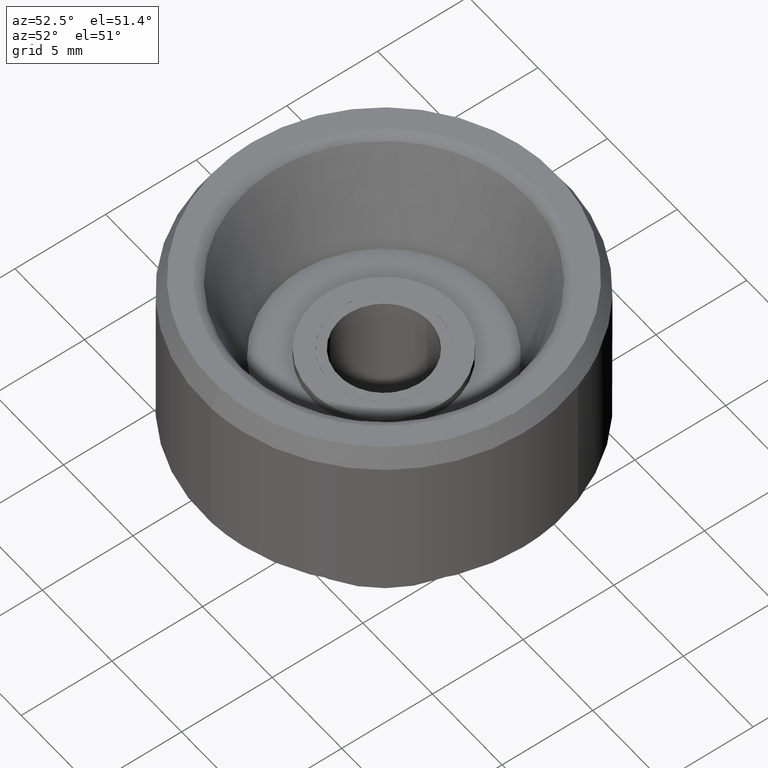
[diagram: clean part render]
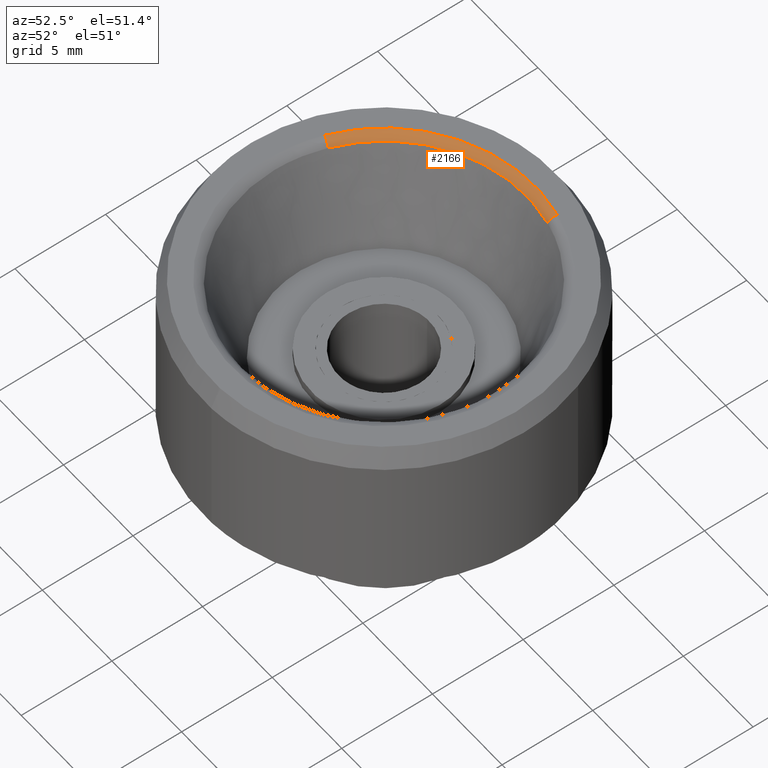
[diagram: same view with one face highlighted and labeled with its STEP entity id]
A machine part, auxiliary view. The second image highlights one B-rep face of the part: STEP entity #2166.
In plain terms, the highlighted face is a freeform B-spline surface patch.
Its self-contained STEP definition (entity closure, byte-faithful):
#536=CARTESIAN_POINT('',(1.747159656451596,7.684193380176412,14.670871531647320));
#537=VERTEX_POINT('',#536);
#551=CARTESIAN_POINT('',(-7.431064275972828,2.622723488216345,14.670871531682600));
#552=VERTEX_POINT('',#551);
#553=CARTESIAN_POINT('',(1.747159656451596,7.684193380176412,14.670871531647320));
#554=CARTESIAN_POINT('',(0.884587535206844,7.880316920561220,14.670871531543446));
#555=CARTESIAN_POINT('',(0.0,7.880316920561219,14.670871531543440));
#556=CARTESIAN_POINT('',(-5.575446658521182,7.880316920561220,14.670871531543449));
#557=CARTESIAN_POINT('',(-7.431064275972829,2.622723488216345,14.670871531682600));
#565=(BOUNDED_CURVE()B_SPLINE_CURVE(2,(#553,#554,#555,#556,#557),.UNSPECIFIED.,.F.,.U.)B_SPLINE_CURVE_WITH_KNOTS((3,2,3),(0.712075985374303,0.750000000000000,0.943451214484640),.UNSPECIFIED.)CURVE()GEOMETRIC_REPRESENTATION_ITEM()RATIONAL_B_SPLINE_CURVE((0.924618444636449,0.955569253143804,1.0,0.773357804424888,0.897469272749543))REPRESENTATION_ITEM(''));
#566=EDGE_CURVE('',#537,#552,#565,.T.);
#2051=CARTESIAN_POINT('',(-7.874172427628556,2.779114297675484,15.0));
#2052=VERTEX_POINT('',#2051);
#2053=CARTESIAN_POINT('',(-7.431064275972828,2.622723488216345,14.670871531682604));
#2054=CARTESIAN_POINT('',(-7.543924287190924,2.662556356200838,14.999999999532820));
#2055=CARTESIAN_POINT('',(-7.874172427628556,2.779114297675484,14.999999999999998));
#2063=(BOUNDED_CURVE()B_SPLINE_CURVE(2,(#2053,#2054,#2055),.UNSPECIFIED.,.F.,.U.)B_SPLINE_CURVE_WITH_KNOTS((3,3),(-1.672020091320803,-0.331586705160698),.UNSPECIFIED.)CURVE()GEOMETRIC_REPRESENTATION_ITEM()RATIONAL_B_SPLINE_CURVE((0.900583652726177,0.737279750086628,0.899707184970135))REPRESENTATION_ITEM(''));
#2064=EDGE_CURVE('',#552,#2052,#2063,.T.);
#2098=CARTESIAN_POINT('',(1.851341326507019,8.142395409055265,15.0));
#2099=VERTEX_POINT('',#2098);
#2113=CARTESIAN_POINT('',(1.747159656451596,7.684193380176412,14.670871531647318));
#2114=CARTESIAN_POINT('',(1.773694813635053,7.800897814384962,14.999999999957845));
#2115=CARTESIAN_POINT('',(1.851341326507019,8.142395409055265,14.999999999999995));
#2123=(BOUNDED_CURVE()B_SPLINE_CURVE(2,(#2113,#2114,#2115),.UNSPECIFIED.,.F.,.U.)B_SPLINE_CURVE_WITH_KNOTS((3,3),(-1.672020091496347,-0.331586703743604),.UNSPECIFIED.)CURVE()GEOMETRIC_REPRESENTATION_ITEM()RATIONAL_B_SPLINE_CURVE((0.861755995604046,0.705492757895419,0.860917316062945))REPRESENTATION_ITEM(''));
#2124=EDGE_CURVE('',#537,#2099,#2123,.T.);
#2129=CARTESIAN_POINT('',(-7.422637742933167,2.619749423490307,14.643941880888097));
#2130=CARTESIAN_POINT('',(-5.089772623068878,9.229546731817123,14.643941880888093));
#2131=CARTESIAN_POINT('',(1.745178446491600,7.675479808754300,14.643941880888097));
#2132=CARTESIAN_POINT('',(-7.529688992783651,2.657532144376387,15.021584514222795));
#2133=CARTESIAN_POINT('',(-5.163178673535649,9.362657702258215,15.021584514222790));
#2134=CARTESIAN_POINT('',(1.770347872830224,7.786177613926267,15.021584514222793));
#2135=CARTESIAN_POINT('',(-7.900944853225997,2.788563370746986,14.999193301502185));
#2136=CARTESIAN_POINT('',(-5.417752314345798,9.824289191236089,14.999193301502192));
#2137=CARTESIAN_POINT('',(1.857635943219288,8.170079800641481,14.999193301502194));
#2145=(BOUNDED_SURFACE()B_SPLINE_SURFACE(2,2,((#2129,#2132,#2135),(#2130,#2133,#2136),(#2131,#2134,#2137)),.UNSPECIFIED.,.F.,.F.,.U.)B_SPLINE_SURFACE_WITH_KNOTS((3,3),(3,3),(0.0,12.757547889204419),(0.0,0.693772320984873),.UNSPECIFIED.)GEOMETRIC_REPRESENTATION_ITEM()RATIONAL_B_SPLINE_SURFACE(((0.917710308883521,0.720196821307382,0.916746385864370),(0.670422472680913,0.526131317349201,0.669718290056269),(0.878144255091104,0.689146340674073,0.877221890535074)))REPRESENTATION_ITEM('')SURFACE());
#2146=ORIENTED_EDGE('',*,*,#566,.F.);
#2147=ORIENTED_EDGE('',*,*,#2124,.T.);
#2148=CARTESIAN_POINT('',(-7.874172427628556,2.779114297675485,15.000000000000004));
#2149=CARTESIAN_POINT('',(-5.907905882891523,8.350213632305444,14.999999999999998));
#2150=CARTESIAN_POINT('',(0.0,8.350213632305442,15.0));
#2151=CARTESIAN_POINT('',(0.937334750610509,8.350213632305442,15.000000000000005));
#2152=CARTESIAN_POINT('',(1.851341326507019,8.142395409055265,15.000000000000005));
#2160=(BOUNDED_CURVE()B_SPLINE_CURVE(2,(#2148,#2149,#2150,#2151,#2152),.UNSPECIFIED.,.F.,.U.)B_SPLINE_CURVE_WITH_KNOTS((3,2,3),(0.056548785515816,0.250000000000000,0.287924014625768),.UNSPECIFIED.)CURVE()GEOMETRIC_REPRESENTATION_ITEM()RATIONAL_B_SPLINE_CURVE((0.897469272748956,0.773357804425423,1.0,0.955569253143722,0.924618444636334))REPRESENTATION_ITEM(''));
#2161=EDGE_CURVE('',#2052,#2099,#2160,.T.);
#2162=ORIENTED_EDGE('',*,*,#2161,.F.);
#2163=ORIENTED_EDGE('',*,*,#2064,.F.);
#2164=EDGE_LOOP('',(#2146,#2147,#2162,#2163));
#2165=FACE_OUTER_BOUND('',#2164,.T.);
#2166=ADVANCED_FACE('',(#2165),#2145,.T.);